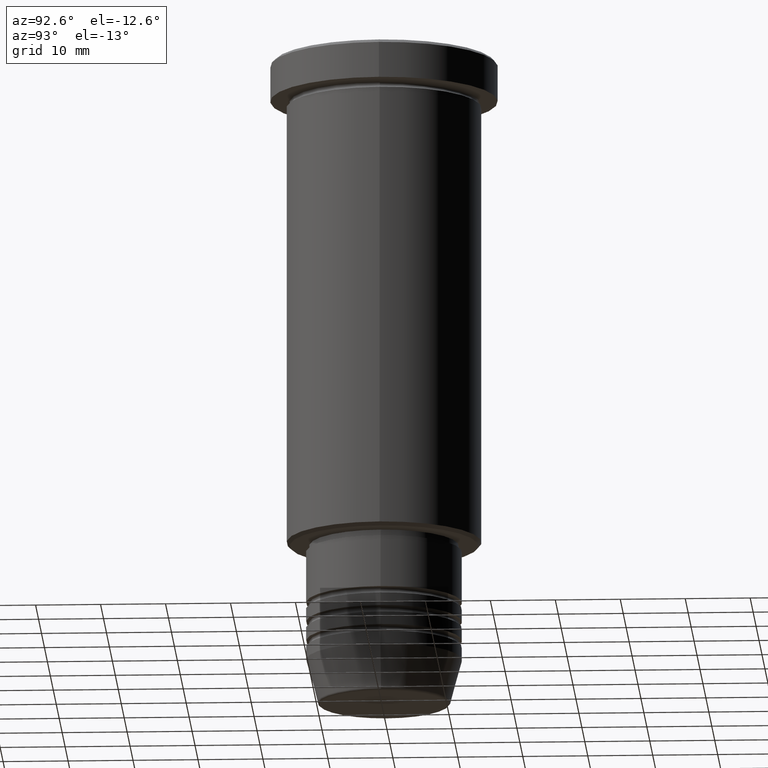
[diagram: clean part render]
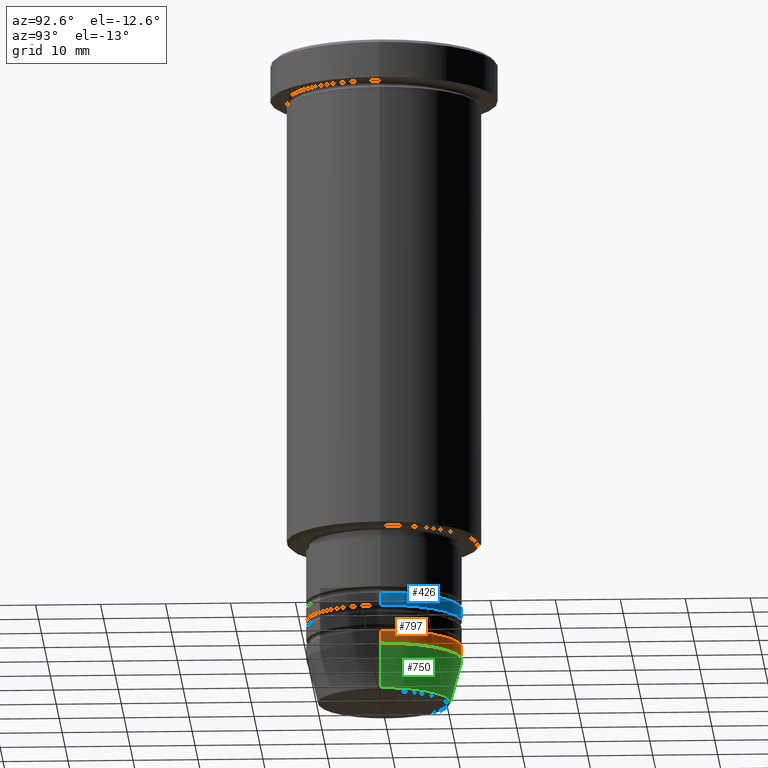
[diagram: same view with three faces highlighted in distinct colors, each labeled with its STEP entity id]
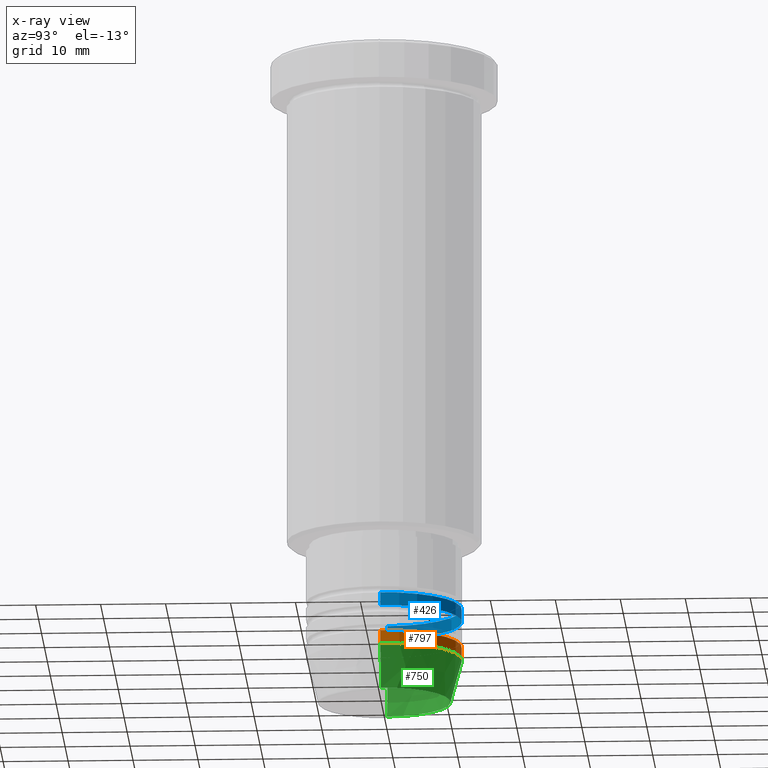
[diagram: x-ray of the same camera — body ghosted, the three highlighted faces saturated]
A machine part, auxiliary view with three faces highlighted in distinct colors.
The next image is the same camera in x-ray (body ghosted, the three faces saturated) — at least one of them is partly hidden behind the body in this view.
Their STEP definitions:

[orange] entity #797 — the highlighted cylindrical surface (partial cylindrical patch) has radius 12 mm, axis along (-0, -0, 1).
#19 = EDGE_CURVE ( 'NONE', #67, #219, #307, .T. ) ;
#67 = VERTEX_POINT ( 'NONE', #148 ) ;
#106 = CARTESIAN_POINT ( 'NONE',  ( -12.00000000000000000, 1.469576158976823947E-15, 0.000000000000000000 ) ) ;
#125 = ORIENTED_EDGE ( 'NONE', *, *, #702, .T. ) ;
#126 = FACE_OUTER_BOUND ( 'NONE', #926, .T. ) ;
#148 = CARTESIAN_POINT ( 'NONE',  ( 12.00000000000000000, 0.000000000000000000, -94.00000000000000000 ) ) ;
#155 = AXIS2_PLACEMENT_3D ( 'NONE', #454, #371, #1108 ) ;
#182 = VERTEX_POINT ( 'NONE', #564 ) ;
#186 = AXIS2_PLACEMENT_3D ( 'NONE', #799, #1176, #704 ) ;
#219 = VERTEX_POINT ( 'NONE', #631 ) ;
#307 = CIRCLE ( 'NONE', #186, 12.00000000000000000 ) ;
#363 = CARTESIAN_POINT ( 'NONE',  ( 12.00000000000000000, 0.000000000000000000, 0.000000000000000000 ) ) ;
#371 = DIRECTION ( 'NONE',  ( -0.000000000000000000, -0.000000000000000000, 1.000000000000000000 ) ) ;
#435 = LINE ( 'NONE', #363, #1003 ) ;
#454 = CARTESIAN_POINT ( 'NONE',  ( 0.000000000000000000, 0.000000000000000000, -92.00000000000000000 ) ) ;
#564 = CARTESIAN_POINT ( 'NONE',  ( 12.00000000000000000, 0.000000000000000000, -92.00000000000000000 ) ) ;
#576 = CARTESIAN_POINT ( 'NONE',  ( -12.00000000000000000, 1.469576158976823947E-15, -92.00000000000000000 ) ) ;
#581 = ORIENTED_EDGE ( 'NONE', *, *, #1025, .F. ) ;
#583 = CYLINDRICAL_SURFACE ( 'NONE', #906, 12.00000000000000000 ) ;
#631 = CARTESIAN_POINT ( 'NONE',  ( -12.00000000000000000, 1.469576158976823947E-15, -94.00000000000000000 ) ) ;
#692 = CARTESIAN_POINT ( 'NONE',  ( 0.000000000000000000, 0.000000000000000000, 0.000000000000000000 ) ) ;
#702 = EDGE_CURVE ( 'NONE', #219, #909, #915, .T. ) ;
#704 = DIRECTION ( 'NONE',  ( 1.000000000000000000, 0.000000000000000000, 0.000000000000000000 ) ) ;
#748 = ORIENTED_EDGE ( 'NONE', *, *, #19, .T. ) ;
#778 = EDGE_CURVE ( 'NONE', #182, #909, #888, .T. ) ;
#797 = ADVANCED_FACE ( 'NONE', ( #126 ), #583, .T. ) ;
#799 = CARTESIAN_POINT ( 'NONE',  ( 0.000000000000000000, 0.000000000000000000, -94.00000000000000000 ) ) ;
#858 = DIRECTION ( 'NONE',  ( -0.000000000000000000, -0.000000000000000000, 1.000000000000000000 ) ) ;
#868 = DIRECTION ( 'NONE',  ( 1.000000000000000000, 0.000000000000000000, 0.000000000000000000 ) ) ;
#888 = CIRCLE ( 'NONE', #155, 12.00000000000000000 ) ;
#906 = AXIS2_PLACEMENT_3D ( 'NONE', #692, #858, #868 ) ;
#909 = VERTEX_POINT ( 'NONE', #576 ) ;
#915 = LINE ( 'NONE', #106, #1174 ) ;
#926 = EDGE_LOOP ( 'NONE', ( #748, #125, #990, #581 ) ) ;
#990 = ORIENTED_EDGE ( 'NONE', *, *, #778, .F. ) ;
#1003 = VECTOR ( 'NONE', #1068, 1000.000000000000000 ) ;
#1017 = DIRECTION ( 'NONE',  ( -0.000000000000000000, -0.000000000000000000, 1.000000000000000000 ) ) ;
#1025 = EDGE_CURVE ( 'NONE', #67, #182, #435, .T. ) ;
#1068 = DIRECTION ( 'NONE',  ( -0.000000000000000000, -0.000000000000000000, 1.000000000000000000 ) ) ;
#1108 = DIRECTION ( 'NONE',  ( 1.000000000000000000, 0.000000000000000000, 0.000000000000000000 ) ) ;
#1174 = VECTOR ( 'NONE', #1017, 1000.000000000000000 ) ;
#1176 = DIRECTION ( 'NONE',  ( -0.000000000000000000, -0.000000000000000000, 1.000000000000000000 ) ) ;

[blue] entity #426 — the highlighted cylindrical surface (partial cylindrical patch) has radius 12 mm, axis along (-0, -0, 1).
#8 = CARTESIAN_POINT ( 'NONE',  ( 12.00000000000000000, 0.000000000000000000, 0.000000000000000000 ) ) ;
#79 = AXIS2_PLACEMENT_3D ( 'NONE', #896, #618, #1082 ) ;
#85 = ORIENTED_EDGE ( 'NONE', *, *, #138, .T. ) ;
#99 = CARTESIAN_POINT ( 'NONE',  ( -12.00000000000000000, 1.469576158976823947E-15, 0.000000000000000000 ) ) ;
#136 = ORIENTED_EDGE ( 'NONE', *, *, #356, .F. ) ;
#138 = EDGE_CURVE ( 'NONE', #1004, #629, #382, .T. ) ;
#200 = CARTESIAN_POINT ( 'NONE',  ( 12.00000000000000000, 0.000000000000000000, -85.99999999999998579 ) ) ;
#201 = FACE_OUTER_BOUND ( 'NONE', #840, .T. ) ;
#224 = CARTESIAN_POINT ( 'NONE',  ( 12.00000000000000000, 0.000000000000000000, -87.99999999999998579 ) ) ;
#257 = CIRCLE ( 'NONE', #79, 12.00000000000000000 ) ;
#356 = EDGE_CURVE ( 'NONE', #876, #698, #365, .T. ) ;
#365 = LINE ( 'NONE', #8, #769 ) ;
#382 = LINE ( 'NONE', #99, #954 ) ;
#426 = ADVANCED_FACE ( 'NONE', ( #201 ), #467, .T. ) ;
#462 = CARTESIAN_POINT ( 'NONE',  ( 0.000000000000000000, 0.000000000000000000, 0.000000000000000000 ) ) ;
#467 = CYLINDRICAL_SURFACE ( 'NONE', #558, 12.00000000000000000 ) ;
#478 = DIRECTION ( 'NONE',  ( -0.000000000000000000, -0.000000000000000000, 1.000000000000000000 ) ) ;
#517 = CIRCLE ( 'NONE', #872, 12.00000000000000000 ) ;
#558 = AXIS2_PLACEMENT_3D ( 'NONE', #462, #478, #751 ) ;
#567 = DIRECTION ( 'NONE',  ( 1.000000000000000000, 0.000000000000000000, 0.000000000000000000 ) ) ;
#618 = DIRECTION ( 'NONE',  ( -0.000000000000000000, -0.000000000000000000, 1.000000000000000000 ) ) ;
#629 = VERTEX_POINT ( 'NONE', #809 ) ;
#697 = EDGE_CURVE ( 'NONE', #698, #629, #517, .T. ) ;
#698 = VERTEX_POINT ( 'NONE', #200 ) ;
#751 = DIRECTION ( 'NONE',  ( 1.000000000000000000, 0.000000000000000000, 0.000000000000000000 ) ) ;
#769 = VECTOR ( 'NONE', #1078, 1000.000000000000000 ) ;
#791 = ORIENTED_EDGE ( 'NONE', *, *, #697, .F. ) ;
#809 = CARTESIAN_POINT ( 'NONE',  ( -12.00000000000000000, 1.469576158976823947E-15, -85.99999999999998579 ) ) ;
#840 = EDGE_LOOP ( 'NONE', ( #1147, #85, #791, #136 ) ) ;
#872 = AXIS2_PLACEMENT_3D ( 'NONE', #1027, #1114, #567 ) ;
#876 = VERTEX_POINT ( 'NONE', #224 ) ;
#896 = CARTESIAN_POINT ( 'NONE',  ( 0.000000000000000000, 0.000000000000000000, -87.99999999999998579 ) ) ;
#954 = VECTOR ( 'NONE', #1007, 1000.000000000000000 ) ;
#1004 = VERTEX_POINT ( 'NONE', #1180 ) ;
#1007 = DIRECTION ( 'NONE',  ( -0.000000000000000000, -0.000000000000000000, 1.000000000000000000 ) ) ;
#1012 = EDGE_CURVE ( 'NONE', #876, #1004, #257, .T. ) ;
#1027 = CARTESIAN_POINT ( 'NONE',  ( 0.000000000000000000, 0.000000000000000000, -85.99999999999998579 ) ) ;
#1078 = DIRECTION ( 'NONE',  ( -0.000000000000000000, -0.000000000000000000, 1.000000000000000000 ) ) ;
#1082 = DIRECTION ( 'NONE',  ( 1.000000000000000000, 0.000000000000000000, 0.000000000000000000 ) ) ;
#1114 = DIRECTION ( 'NONE',  ( -0.000000000000000000, -0.000000000000000000, 1.000000000000000000 ) ) ;
#1147 = ORIENTED_EDGE ( 'NONE', *, *, #1012, .T. ) ;
#1180 = CARTESIAN_POINT ( 'NONE',  ( -12.00000000000000000, 1.469576158976823947E-15, -87.99999999999998579 ) ) ;

[green] entity #750 — the highlighted conical surface has half-angle 15 deg.
#19 = EDGE_CURVE ( 'NONE', #67, #219, #307, .T. ) ;
#67 = VERTEX_POINT ( 'NONE', #148 ) ;
#73 = CARTESIAN_POINT ( 'NONE',  ( 12.00000000000000000, 0.000000000000000000, -94.00000000000000000 ) ) ;
#103 = FACE_OUTER_BOUND ( 'NONE', #414, .T. ) ;
#148 = CARTESIAN_POINT ( 'NONE',  ( 12.00000000000000000, 0.000000000000000000, -94.00000000000000000 ) ) ;
#162 = CARTESIAN_POINT ( 'NONE',  ( -10.22365507213718949, 1.360806402472382547E-15, -100.6294095225512706 ) ) ;
#170 = ORIENTED_EDGE ( 'NONE', *, *, #689, .T. ) ;
#177 = ORIENTED_EDGE ( 'NONE', *, *, #1014, .T. ) ;
#186 = AXIS2_PLACEMENT_3D ( 'NONE', #799, #1176, #704 ) ;
#202 = ORIENTED_EDGE ( 'NONE', *, *, #19, .F. ) ;
#219 = VERTEX_POINT ( 'NONE', #631 ) ;
#253 = DIRECTION ( 'NONE',  ( -0.2588190451025213501, 3.169619151431772337E-17, 0.9659258262890680902 ) ) ;
#307 = CIRCLE ( 'NONE', #186, 12.00000000000000000 ) ;
#310 = EDGE_CURVE ( 'NONE', #1107, #67, #545, .T. ) ;
#315 = CIRCLE ( 'NONE', #408, 10.22365507213718949 ) ;
#397 = CARTESIAN_POINT ( 'NONE',  ( 0.000000000000000000, 0.000000000000000000, -100.6294095225512706 ) ) ;
#408 = AXIS2_PLACEMENT_3D ( 'NONE', #397, #754, #828 ) ;
#410 = VECTOR ( 'NONE', #253, 1000.000000000000000 ) ;
#414 = EDGE_LOOP ( 'NONE', ( #170, #177, #202, #756 ) ) ;
#442 = CONICAL_SURFACE ( 'NONE', #538, 12.00000000000000000, 0.2617993877991500740 ) ;
#538 = AXIS2_PLACEMENT_3D ( 'NONE', #738, #845, #841 ) ;
#545 = LINE ( 'NONE', #73, #999 ) ;
#604 = LINE ( 'NONE', #1162, #410 ) ;
#625 = VERTEX_POINT ( 'NONE', #162 ) ;
#631 = CARTESIAN_POINT ( 'NONE',  ( -12.00000000000000000, 1.469576158976823947E-15, -94.00000000000000000 ) ) ;
#689 = EDGE_CURVE ( 'NONE', #1107, #625, #315, .T. ) ;
#704 = DIRECTION ( 'NONE',  ( 1.000000000000000000, 0.000000000000000000, 0.000000000000000000 ) ) ;
#734 = CARTESIAN_POINT ( 'NONE',  ( 10.22365507213718949, 0.000000000000000000, -100.6294095225512706 ) ) ;
#738 = CARTESIAN_POINT ( 'NONE',  ( 0.000000000000000000, 0.000000000000000000, -94.00000000000000000 ) ) ;
#750 = ADVANCED_FACE ( 'NONE', ( #103 ), #442, .T. ) ;
#754 = DIRECTION ( 'NONE',  ( -0.000000000000000000, -0.000000000000000000, 1.000000000000000000 ) ) ;
#756 = ORIENTED_EDGE ( 'NONE', *, *, #310, .F. ) ;
#799 = CARTESIAN_POINT ( 'NONE',  ( 0.000000000000000000, 0.000000000000000000, -94.00000000000000000 ) ) ;
#828 = DIRECTION ( 'NONE',  ( 1.000000000000000000, 0.000000000000000000, 0.000000000000000000 ) ) ;
#841 = DIRECTION ( 'NONE',  ( 1.000000000000000000, 0.000000000000000000, 0.000000000000000000 ) ) ;
#845 = DIRECTION ( 'NONE',  ( -0.000000000000000000, -0.000000000000000000, 1.000000000000000000 ) ) ;
#978 = DIRECTION ( 'NONE',  ( 0.2588190451025213501, 0.000000000000000000, 0.9659258262890680902 ) ) ;
#999 = VECTOR ( 'NONE', #978, 1000.000000000000000 ) ;
#1014 = EDGE_CURVE ( 'NONE', #625, #219, #604, .T. ) ;
#1107 = VERTEX_POINT ( 'NONE', #734 ) ;
#1162 = CARTESIAN_POINT ( 'NONE',  ( -12.00000000000000000, 1.469576158976823947E-15, -94.00000000000000000 ) ) ;
#1176 = DIRECTION ( 'NONE',  ( -0.000000000000000000, -0.000000000000000000, 1.000000000000000000 ) ) ;